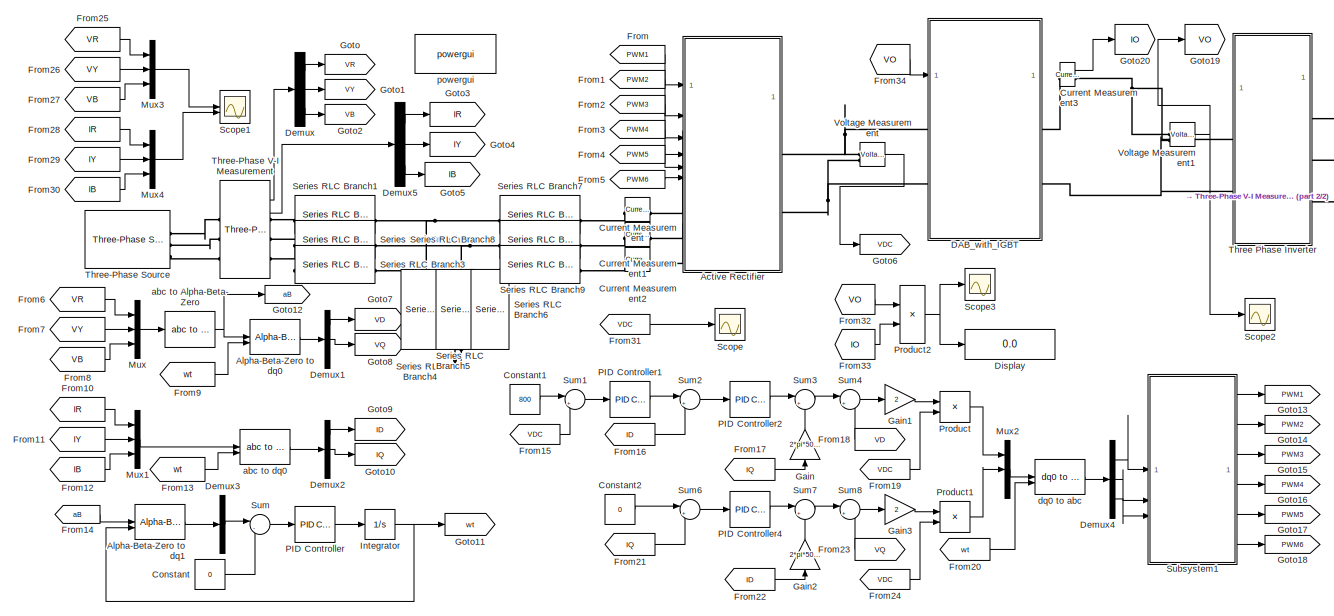
[diagram: root canvas - part 1/2, most of the canvas]
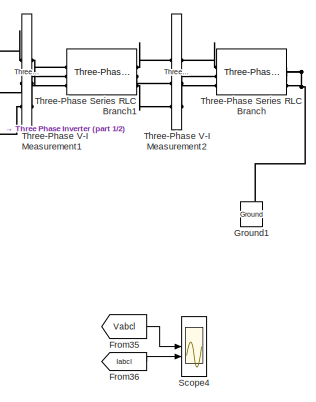
[diagram: root canvas - part 2/2, middle right region]
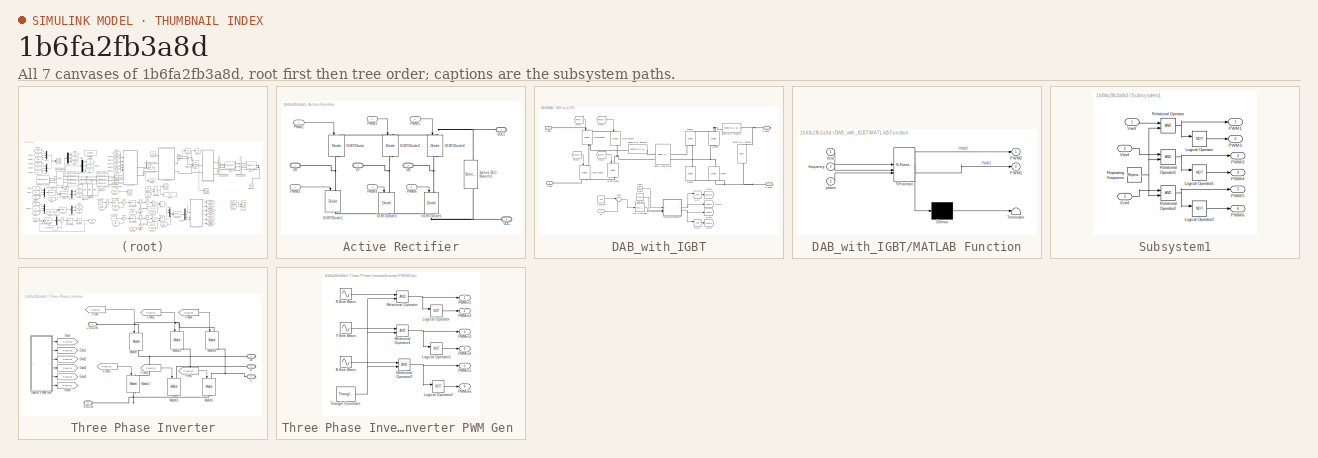
[diagram: thumbnail index - all 7 canvases of the model, root first then tree order]
MODEL slx_1b6fa2fb3a8d
KIND model
CONFIG AbsTol = auto
CONFIG EnableMultiTasking = off
CONFIG FixedStep = auto
CONFIG MaxStep = auto
CONFIG MinStep = auto
CONFIG RelTol = 1e-3
CONFIG SampleTimeConstraint = Unconstrained
CONFIG SolverName = VariableStepAuto
CONFIG StartTime = 0.0
CONFIG StopTime = 1.0
BLOCK [SubSystem] Active Rectifier
BLOCK [Reference] Active Rectifier/IGBT//Diode  REF=spsIGBTDiodeLib/IGBT//Diode
  LibrarySourceBlock = sps_lib/Power Electronics/IGBT//Diode
  NameLocation = left
  SourceBlock = spsIGBTDiodeLib/IGBT//Diode
  SourceType = IGBT/Diode
BLOCK [Reference] Active Rectifier/IGBT//Diode1  REF=spsIGBTDiodeLib/IGBT//Diode
  LibrarySourceBlock = sps_lib/Power Electronics/IGBT//Diode
  NameLocation = left
  SourceBlock = spsIGBTDiodeLib/IGBT//Diode
  SourceType = IGBT/Diode
BLOCK [Reference] Active Rectifier/IGBT//Diode2  REF=spsIGBTDiodeLib/IGBT//Diode
  LibrarySourceBlock = sps_lib/Power Electronics/IGBT//Diode
  NameLocation = left
  SourceBlock = spsIGBTDiodeLib/IGBT//Diode
  SourceType = IGBT/Diode
BLOCK [Reference] Active Rectifier/IGBT//Diode3  REF=spsIGBTDiodeLib/IGBT//Diode
  LibrarySourceBlock = sps_lib/Power Electronics/IGBT//Diode
  NameLocation = left
  SourceBlock = spsIGBTDiodeLib/IGBT//Diode
  SourceType = IGBT/Diode
BLOCK [Reference] Active Rectifier/IGBT//Diode4  REF=spsIGBTDiodeLib/IGBT//Diode
  LibrarySourceBlock = sps_lib/Power Electronics/IGBT//Diode
  NameLocation = left
  SourceBlock = spsIGBTDiodeLib/IGBT//Diode
  SourceType = IGBT/Diode
BLOCK [Reference] Active Rectifier/IGBT//Diode5  REF=spsIGBTDiodeLib/IGBT//Diode
  LibrarySourceBlock = sps_lib/Power Electronics/IGBT//Diode
  NameLocation = left
  SourceBlock = spsIGBTDiodeLib/IGBT//Diode
  SourceType = IGBT/Diode
BLOCK [Inport] Active Rectifier/PWM1
BLOCK [Inport] Active Rectifier/PWM2
  Port = 2
BLOCK [Inport] Active Rectifier/PWM3
  Port = 3
BLOCK [Inport] Active Rectifier/PWM4
  Port = 4
BLOCK [Inport] Active Rectifier/PWM5
  Port = 5
BLOCK [Inport] Active Rectifier/PWM6
  Port = 6
BLOCK [Reference] Active Rectifier/Series RLC Branch1  REF=spsSeriesRLCBranchLib/Series RLC Branch
  LibrarySourceBlock = sps_lib/Passives/Series RLC Branch
  NameLocation = left
  SourceBlock = spsSeriesRLCBranchLib/Series RLC Branch
  SourceType = Series RLC Branch
BLOCK [PMIOPort] Active Rectifier/VB
  Port = 3
  Side = Left
BLOCK [PMIOPort] Active Rectifier/VDC+
  Port = 4
  Side = Right
BLOCK [PMIOPort] Active Rectifier/VDC-
  Port = 5
  Side = Right
BLOCK [PMIOPort] Active Rectifier/VR
  Side = Left
BLOCK [PMIOPort] Active Rectifier/VY
  Port = 2
  Side = Left
BLOCK [Reference] Alpha-Beta-Zero to dq0  REF=spsAlphaBetaZerotodq0Lib/Alpha-Beta-Zero
to dq0
  LibrarySourceBlock = sps_lib/Control/Alpha-Beta-Zero\nto dq0
  SourceBlock = spsAlphaBetaZerotodq0Lib/Alpha-Beta-Zero\nto dq0
  SourceType = Alpha-Beta-Zero to dq0 Transformation
BLOCK [Reference] Alpha-Beta-Zero to dq1  REF=spsAlphaBetaZerotodq0Lib/Alpha-Beta-Zero
to dq0
  LibrarySourceBlock = sps_lib/Control/Alpha-Beta-Zero\nto dq0
  SourceBlock = spsAlphaBetaZerotodq0Lib/Alpha-Beta-Zero\nto dq0
  SourceType = Alpha-Beta-Zero to dq0 Transformation
BLOCK [Constant] Constant
  Value = 0
BLOCK [Constant] Constant1
  Value = 800
BLOCK [Constant] Constant2
  Value = 0
BLOCK [Reference] Current Measurement  REF=spsCurrentMeasurementLib/Current Measurement
  LibrarySourceBlock = sps_lib/Sensors and Measurements/Current Measurement
  SourceBlock = spsCurrentMeasurementLib/Current Measurement
  SourceType = Current Measurement
  UserDataPersistent = on
BLOCK [Reference] Current Measurement1  REF=spsCurrentMeasurementLib/Current Measurement
  LibrarySourceBlock = sps_lib/Sensors and Measurements/Current Measurement
  SourceBlock = spsCurrentMeasurementLib/Current Measurement
  SourceType = Current Measurement
  UserDataPersistent = on
BLOCK [Reference] Current Measurement2  REF=spsCurrentMeasurementLib/Current Measurement
  LibrarySourceBlock = sps_lib/Sensors and Measurements/Current Measurement
  SourceBlock = spsCurrentMeasurementLib/Current Measurement
  SourceType = Current Measurement
  UserDataPersistent = on
BLOCK [Reference] Current Measurement3  REF=spsCurrentMeasurementLib/Current Measurement
  LibrarySourceBlock = sps_lib/Sensors and Measurements/Current Measurement
  SourceBlock = spsCurrentMeasurementLib/Current Measurement
  SourceType = Current Measurement
  UserDataPersistent = on
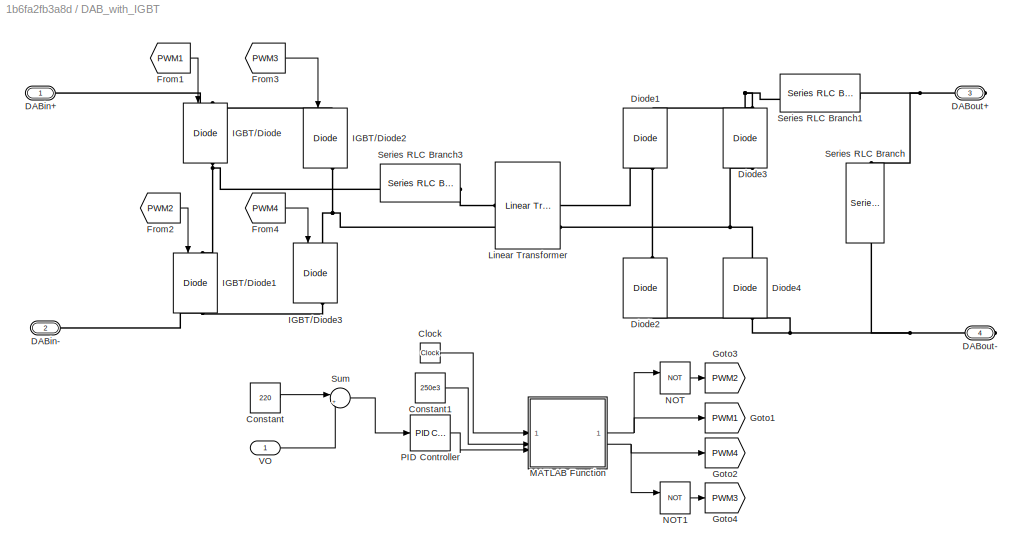
BLOCK [SubSystem] DAB_with_IGBT
BLOCK [Clock] DAB_with_IGBT/Clock
BLOCK [Constant] DAB_with_IGBT/Constant
  Value = 220
BLOCK [Constant] DAB_with_IGBT/Constant1
  Value = 250e3
BLOCK [PMIOPort] DAB_with_IGBT/DABin+
  Side = Left
BLOCK [PMIOPort] DAB_with_IGBT/DABin-
  Port = 2
  Side = Left
BLOCK [PMIOPort] DAB_with_IGBT/DABout+
  Port = 3
  Side = Right
BLOCK [PMIOPort] DAB_with_IGBT/DABout-
  Port = 4
  Side = Right
BLOCK [Reference] DAB_with_IGBT/Diode1  REF=spsDiodeLib/Diode
  LibrarySourceBlock = sps_lib/Power Electronics/Diode
  NameLocation = right
  SourceBlock = spsDiodeLib/Diode
  SourceType = Diode
BLOCK [Reference] DAB_with_IGBT/Diode2  REF=spsDiodeLib/Diode
  LibrarySourceBlock = sps_lib/Power Electronics/Diode
  NameLocation = right
  SourceBlock = spsDiodeLib/Diode
  SourceType = Diode
BLOCK [Reference] DAB_with_IGBT/Diode3  REF=spsDiodeLib/Diode
  LibrarySourceBlock = sps_lib/Power Electronics/Diode
  NameLocation = right
  SourceBlock = spsDiodeLib/Diode
  SourceType = Diode
BLOCK [Reference] DAB_with_IGBT/Diode4  REF=spsDiodeLib/Diode
  LibrarySourceBlock = sps_lib/Power Electronics/Diode
  NameLocation = right
  SourceBlock = spsDiodeLib/Diode
  SourceType = Diode
BLOCK [From] DAB_with_IGBT/From1
  GotoTag = PWM1
BLOCK [From] DAB_with_IGBT/From2
  GotoTag = PWM2
BLOCK [From] DAB_with_IGBT/From3
  GotoTag = PWM3
BLOCK [From] DAB_with_IGBT/From4
  GotoTag = PWM4
BLOCK [Goto] DAB_with_IGBT/Goto1
  GotoTag = PWM1
BLOCK [Goto] DAB_with_IGBT/Goto2
  GotoTag = PWM4
BLOCK [Goto] DAB_with_IGBT/Goto3
  GotoTag = PWM2
BLOCK [Goto] DAB_with_IGBT/Goto4
  GotoTag = PWM3
BLOCK [Reference] DAB_with_IGBT/IGBT//Diode  REF=spsIGBTDiodeLib/IGBT//Diode
  LibrarySourceBlock = sps_lib/Power Electronics/IGBT//Diode
  NameLocation = left
  SourceBlock = spsIGBTDiodeLib/IGBT//Diode
  SourceType = IGBT/Diode
BLOCK [Reference] DAB_with_IGBT/IGBT//Diode1  REF=spsIGBTDiodeLib/IGBT//Diode
  LibrarySourceBlock = sps_lib/Power Electronics/IGBT//Diode
  NameLocation = left
  SourceBlock = spsIGBTDiodeLib/IGBT//Diode
  SourceType = IGBT/Diode
BLOCK [Reference] DAB_with_IGBT/IGBT//Diode2  REF=spsIGBTDiodeLib/IGBT//Diode
  LibrarySourceBlock = sps_lib/Power Electronics/IGBT//Diode
  NameLocation = left
  SourceBlock = spsIGBTDiodeLib/IGBT//Diode
  SourceType = IGBT/Diode
BLOCK [Reference] DAB_with_IGBT/IGBT//Diode3  REF=spsIGBTDiodeLib/IGBT//Diode
  LibrarySourceBlock = sps_lib/Power Electronics/IGBT//Diode
  NameLocation = left
  SourceBlock = spsIGBTDiodeLib/IGBT//Diode
  SourceType = IGBT/Diode
BLOCK [Reference] DAB_with_IGBT/Linear Transformer  REF=spsLinearTransformerLib/Linear Transformer
  LibrarySourceBlock = sps_lib/Power Grid Elements/Linear Transformer
  SourceBlock = spsLinearTransformerLib/Linear Transformer
  SourceType = Linear Transformer
BLOCK [SubSystem] DAB_with_IGBT/MATLAB Function
  ErrorFcn = Stateflow.Translate.translate
  LibrarySourceBlock = simulink/User-Defined\nFunctions/MATLAB Function
  PermitHierarchicalResolution = ExplicitOnly
  SFBlockType = MATLAB Function
  TreatAsAtomicUnit = on
BLOCK [Demux] DAB_with_IGBT/MATLAB Function/ Demux 
  Outputs = 1
BLOCK [S-Function] DAB_with_IGBT/MATLAB Function/ SFunction 
  EnableBusSupport = on
  FunctionName = sf_sfun
  PortCounts = [3 3]
  SFcnIsStateOwnerBlock = off
  SFunctionDeploymentMode = off
  Tag = Stateflow S-Function 2
BLOCK [Terminator] DAB_with_IGBT/MATLAB Function/ Terminator 
BLOCK [Outport] DAB_with_IGBT/MATLAB Function/PWM1
  Port = 2
BLOCK [Outport] DAB_with_IGBT/MATLAB Function/PWM2
BLOCK [Inport] DAB_with_IGBT/MATLAB Function/frequency
  Port = 2
BLOCK [Inport] DAB_with_IGBT/MATLAB Function/phase
  Port = 3
BLOCK [Inport] DAB_with_IGBT/MATLAB Function/time
BLOCK [Logic] DAB_with_IGBT/NOT
  AllPortsSameDT = off
  IconShape = distinctive
  Operator = NOT
  OutDataTypeStr = boolean
BLOCK [Logic] DAB_with_IGBT/NOT1
  AllPortsSameDT = off
  IconShape = distinctive
  Operator = NOT
  OutDataTypeStr = boolean
BLOCK [Reference] DAB_with_IGBT/PID Controller  REF=slpidlib/PID Controller
  LibrarySourceBlock = simulink/Continuous/PID Controller
  SourceBlock = slpidlib/PID Controller
  SourceType = PID 1dof
BLOCK [Reference] DAB_with_IGBT/Series RLC Branch  REF=spsSeriesRLCBranchLib/Series RLC Branch
  LibrarySourceBlock = sps_lib/Passives/Series RLC Branch
  NameLocation = left
  SourceBlock = spsSeriesRLCBranchLib/Series RLC Branch
  SourceType = Series RLC Branch
BLOCK [Reference] DAB_with_IGBT/Series RLC Branch1  REF=spsSeriesRLCBranchLib/Series RLC Branch
  LibrarySourceBlock = sps_lib/Passives/Series RLC Branch
  SourceBlock = spsSeriesRLCBranchLib/Series RLC Branch
  SourceType = Series RLC Branch
BLOCK [Reference] DAB_with_IGBT/Series RLC Branch3  REF=spsSeriesRLCBranchLib/Series RLC Branch
  LibrarySourceBlock = sps_lib/Passives/Series RLC Branch
  SourceBlock = spsSeriesRLCBranchLib/Series RLC Branch
  SourceType = Series RLC Branch
BLOCK [Sum] DAB_with_IGBT/Sum
  Inputs = |+-
BLOCK [Inport] DAB_with_IGBT/VO
BLOCK [Demux] Demux
  Outputs = 3
BLOCK [Demux] Demux1
  Outputs = 3
BLOCK [Demux] Demux2
  Outputs = 3
BLOCK [Demux] Demux3
  Outputs = 3
BLOCK [Demux] Demux4
  Outputs = 3
BLOCK [Demux] Demux5
  Outputs = 3
BLOCK [Display] Display
  Decimation = 1
BLOCK [From] From
  GotoTag = PWM1
BLOCK [From] From1
  GotoTag = PWM2
BLOCK [From] From10
  GotoTag = IR
BLOCK [From] From11
  GotoTag = IY
BLOCK [From] From12
  GotoTag = IB
BLOCK [From] From13
  GotoTag = wt
BLOCK [From] From14
  GotoTag = aB
BLOCK [From] From15
  GotoTag = VDC
BLOCK [From] From16
  GotoTag = ID
BLOCK [From] From17
  GotoTag = IQ
BLOCK [From] From18
  GotoTag = VD
BLOCK [From] From19
  GotoTag = VDC
BLOCK [From] From2
  GotoTag = PWM3
BLOCK [From] From20
  GotoTag = wt
BLOCK [From] From21
  GotoTag = IQ
BLOCK [From] From22
  GotoTag = ID
BLOCK [From] From23
  GotoTag = VQ
BLOCK [From] From24
  GotoTag = VDC
BLOCK [From] From25
  GotoTag = VR
BLOCK [From] From26
  GotoTag = VY
BLOCK [From] From27
  GotoTag = VB
BLOCK [From] From28
  GotoTag = IR
BLOCK [From] From29
  GotoTag = IY
BLOCK [From] From3
  GotoTag = PWM4
BLOCK [From] From30
  GotoTag = IB
BLOCK [From] From31
  GotoTag = VDC
BLOCK [From] From32
  GotoTag = VO
BLOCK [From] From33
  GotoTag = IO
BLOCK [From] From34
  GotoTag = VO
BLOCK [From] From35
  GotoTag = Vabcl
  TagVisibility = global
BLOCK [From] From36
  GotoTag = Iabcl
  TagVisibility = global
BLOCK [From] From4
  GotoTag = PWM5
BLOCK [From] From5
  GotoTag = PWM6
BLOCK [From] From6
  GotoTag = VR
BLOCK [From] From7
  GotoTag = VY
BLOCK [From] From8
  GotoTag = VB
BLOCK [From] From9
  GotoTag = wt
BLOCK [Gain] Gain
  Gain = 2*pi*50*1000e-6
  NameLocation = right
BLOCK [Gain] Gain1
  Gain = 2
BLOCK [Gain] Gain2
  Gain = 2*pi*50*1000e-6
  NameLocation = right
BLOCK [Gain] Gain3
  Gain = 2
BLOCK [Goto] Goto
  GotoTag = VR
BLOCK [Goto] Goto1
  GotoTag = VY
BLOCK [Goto] Goto10
  GotoTag = IQ
BLOCK [Goto] Goto11
  GotoTag = wt
BLOCK [Goto] Goto12
  GotoTag = aB
BLOCK [Goto] Goto13
  GotoTag = PWM1
BLOCK [Goto] Goto14
  GotoTag = PWM2
BLOCK [Goto] Goto15
  GotoTag = PWM3
BLOCK [Goto] Goto16
  GotoTag = PWM4
BLOCK [Goto] Goto17
  GotoTag = PWM5
BLOCK [Goto] Goto18
  GotoTag = PWM6
BLOCK [Goto] Goto19
  GotoTag = VO
BLOCK [Goto] Goto2
  GotoTag = VB
BLOCK [Goto] Goto20
  GotoTag = IO
BLOCK [Goto] Goto3
  GotoTag = IR
BLOCK [Goto] Goto4
  GotoTag = IY
BLOCK [Goto] Goto5
  GotoTag = IB
BLOCK [Goto] Goto6
  GotoTag = VDC
BLOCK [Goto] Goto7
  GotoTag = VD
BLOCK [Goto] Goto8
  GotoTag = VQ
BLOCK [Goto] Goto9
  GotoTag = ID
BLOCK [Reference] Ground1  REF=spsGroundLib/Ground
  LibrarySourceBlock = sps_lib/Utilities/Ground
  NameLocation = right
  SourceBlock = spsGroundLib/Ground
  SourceType = Ground
BLOCK [Integrator] Integrator
BLOCK [Mux] Mux
  DisplayOption = bar
  Inputs = 3
BLOCK [Mux] Mux1
  DisplayOption = bar
  Inputs = 3
BLOCK [Mux] Mux2
  DisplayOption = bar
  Inputs = 3
BLOCK [Mux] Mux3
  DisplayOption = bar
  Inputs = 3
BLOCK [Mux] Mux4
  DisplayOption = bar
  Inputs = 3
BLOCK [Reference] PID Controller  REF=slpidlib/PID Controller
  LibrarySourceBlock = simulink/Continuous/PID Controller
  SourceBlock = slpidlib/PID Controller
  SourceType = PID 1dof
BLOCK [Reference] PID Controller1  REF=slpidlib/PID Controller
  LibrarySourceBlock = simulink/Continuous/PID Controller
  SourceBlock = slpidlib/PID Controller
  SourceType = PID 1dof
BLOCK [Reference] PID Controller2  REF=slpidlib/PID Controller
  LibrarySourceBlock = simulink/Continuous/PID Controller
  SourceBlock = slpidlib/PID Controller
  SourceType = PID 1dof
BLOCK [Reference] PID Controller4  REF=slpidlib/PID Controller
  LibrarySourceBlock = simulink/Continuous/PID Controller
  SourceBlock = slpidlib/PID Controller
  SourceType = PID 1dof
BLOCK [Product] Product
  Inputs = */
BLOCK [Product] Product1
  Inputs = */
BLOCK [Product] Product2
BLOCK [Scope] Scope
  Floating = off
  NumInputPorts = 1
  ScopeSpecificationString = Simulink.scopes.TimeScopeBlockCfg('CurrentConfiguration', extmgr.ConfigurationSet(extmgr.Configuration('Core','General UI',true,'FigureColor',[1 1 1]),extmgr.Configuration('Core','Source UI',true),extmgr.Configuration('Sources','WiredSimulink',true,'DataLoggingVariableName','ScopeData1'),extmgr.Configuration('Visuals','Time Domain',true,'SerializedDisplays',{struct('MinYLimReal','-140.99933','MaxY...<+1516ch>
BLOCK [Scope] Scope1
  Floating = off
  NumInputPorts = 2
  ScopeSpecificationString = Simulink.scopes.TimeScopeBlockCfg('CurrentConfiguration', extmgr.ConfigurationSet(extmgr.Configuration('Core','General UI',true,'FigureColor',[1 1 1]),extmgr.Configuration('Core','Source UI',true),extmgr.Configuration('Sources','WiredSimulink',true),extmgr.Configuration('Visuals','Time Domain',true,'SerializedDisplays',{struct('MinYLimReal','-1213.92649','MaxYLimReal','1216.85439','YLabelReal','',...<+2098ch>
BLOCK [Scope] Scope2
  Floating = off
  NumInputPorts = 1
  ScopeSpecificationString = Simulink.scopes.TimeScopeBlockCfg('CurrentConfiguration', extmgr.ConfigurationSet(extmgr.Configuration('Core','General UI',true,'FigureColor',[1 1 1]),extmgr.Configuration('Core','Source UI',true),extmgr.Configuration('Sources','WiredSimulink',true,'DataLoggingVariableName','ScopeData2'),extmgr.Configuration('Visuals','Time Domain',true,'SerializedDisplays',{struct('MinYLimReal','-73.99323','MaxYL...<+1534ch>
BLOCK [Scope] Scope3
  Floating = off
  NumInputPorts = 1
  ScopeSpecificationString = Simulink.scopes.TimeScopeBlockCfg('CurrentConfiguration', extmgr.ConfigurationSet(extmgr.Configuration('Core','General UI',true),extmgr.Configuration('Core','Source UI',true),extmgr.Configuration('Sources','WiredSimulink',true,'DataLoggingVariableName','ScopeData3'),extmgr.Configuration('Visuals','Time Domain',true,'SerializedDisplays',{struct('MinYLimReal','-388.59386','MaxYLimReal','3497.34476',...<+1410ch>
BLOCK [Scope] Scope4
  Floating = off
  NumInputPorts = 2
  ScopeSpecificationString = Simulink.scopes.TimeScopeBlockCfg('CurrentConfiguration', extmgr.ConfigurationSet(extmgr.Configuration('Core','General UI',true,'FigureColor',[1 1 1]),extmgr.Configuration('Core','Source UI',true),extmgr.Configuration('Sources','WiredSimulink',true,'DataLoggingVariableName','ScopeData4'),extmgr.Configuration('Visuals','Time Domain',true,'TimeAxisLabels','All','SerializedDisplays',{struct('MinYLimR...<+2690ch>
BLOCK [Reference] Series RLC Branch1  REF=spsSeriesRLCBranchLib/Series RLC Branch
  LibrarySourceBlock = sps_lib/Passives/Series RLC Branch
  SourceBlock = spsSeriesRLCBranchLib/Series RLC Branch
  SourceType = Series RLC Branch
BLOCK [Reference] Series RLC Branch2  REF=spsSeriesRLCBranchLib/Series RLC Branch
  LibrarySourceBlock = sps_lib/Passives/Series RLC Branch
  SourceBlock = spsSeriesRLCBranchLib/Series RLC Branch
  SourceType = Series RLC Branch
BLOCK [Reference] Series RLC Branch3  REF=spsSeriesRLCBranchLib/Series RLC Branch
  LibrarySourceBlock = sps_lib/Passives/Series RLC Branch
  SourceBlock = spsSeriesRLCBranchLib/Series RLC Branch
  SourceType = Series RLC Branch
BLOCK [Reference] Series RLC Branch4  REF=spsSeriesRLCBranchLib/Series RLC Branch
  LibrarySourceBlock = sps_lib/Passives/Series RLC Branch
  NameLocation = left
  SourceBlock = spsSeriesRLCBranchLib/Series RLC Branch
  SourceType = Series RLC Branch
BLOCK [Reference] Series RLC Branch5  REF=spsSeriesRLCBranchLib/Series RLC Branch
  LibrarySourceBlock = sps_lib/Passives/Series RLC Branch
  NameLocation = left
  SourceBlock = spsSeriesRLCBranchLib/Series RLC Branch
  SourceType = Series RLC Branch
BLOCK [Reference] Series RLC Branch6  REF=spsSeriesRLCBranchLib/Series RLC Branch
  LibrarySourceBlock = sps_lib/Passives/Series RLC Branch
  NameLocation = left
  SourceBlock = spsSeriesRLCBranchLib/Series RLC Branch
  SourceType = Series RLC Branch
BLOCK [Reference] Series RLC Branch7  REF=spsSeriesRLCBranchLib/Series RLC Branch
  LibrarySourceBlock = sps_lib/Passives/Series RLC Branch
  SourceBlock = spsSeriesRLCBranchLib/Series RLC Branch
  SourceType = Series RLC Branch
BLOCK [Reference] Series RLC Branch8  REF=spsSeriesRLCBranchLib/Series RLC Branch
  LibrarySourceBlock = sps_lib/Passives/Series RLC Branch
  SourceBlock = spsSeriesRLCBranchLib/Series RLC Branch
  SourceType = Series RLC Branch
BLOCK [Reference] Series RLC Branch9  REF=spsSeriesRLCBranchLib/Series RLC Branch
  LibrarySourceBlock = sps_lib/Passives/Series RLC Branch
  SourceBlock = spsSeriesRLCBranchLib/Series RLC Branch
  SourceType = Series RLC Branch
BLOCK [SubSystem] Subsystem1
BLOCK [Logic] Subsystem1/Logical Operator
  AllPortsSameDT = off
  Operator = NOT
  OutDataTypeStr = boolean
BLOCK [Logic] Subsystem1/Logical Operator1
  AllPortsSameDT = off
  Operator = NOT
  OutDataTypeStr = boolean
BLOCK [Logic] Subsystem1/Logical Operator2
  AllPortsSameDT = off
  Operator = NOT
  OutDataTypeStr = boolean
BLOCK [Outport] Subsystem1/PWM1
BLOCK [Outport] Subsystem1/PWM2
  Port = 2
BLOCK [Outport] Subsystem1/PWM3
  Port = 3
BLOCK [Outport] Subsystem1/PWM4
  Port = 4
BLOCK [Outport] Subsystem1/PWM5
  Port = 5
BLOCK [Outport] Subsystem1/PWM6
  Port = 6
BLOCK [RelationalOperator] Subsystem1/Relational Operator
  InputSameDT = off
  OutDataTypeStr = boolean
  RndMeth = Simplest
BLOCK [RelationalOperator] Subsystem1/Relational Operator1
  InputSameDT = off
  OutDataTypeStr = boolean
  RndMeth = Simplest
BLOCK [RelationalOperator] Subsystem1/Relational Operator2
  InputSameDT = off
  OutDataTypeStr = boolean
  RndMeth = Simplest
BLOCK [Reference] Subsystem1/Repeating Sequence  REF=simulink/Sources/Repeating
Sequence
  SourceBlock = simulink/Sources/Repeating\nSequence
  SourceType = Repeating table
BLOCK [Inport] Subsystem1/Varef
BLOCK [Inport] Subsystem1/Vbref
  Port = 2
BLOCK [Inport] Subsystem1/Vcref
  Port = 3
BLOCK [Sum] Sum
  Inputs = |-+
BLOCK [Sum] Sum1
  Inputs = |+-
BLOCK [Sum] Sum2
  Inputs = |+-
BLOCK [Sum] Sum3
  Inputs = |++
BLOCK [Sum] Sum4
  Inputs = |++
BLOCK [Sum] Sum6
  Inputs = |+-
BLOCK [Sum] Sum7
  Inputs = |+-
BLOCK [Sum] Sum8
  Inputs = |++
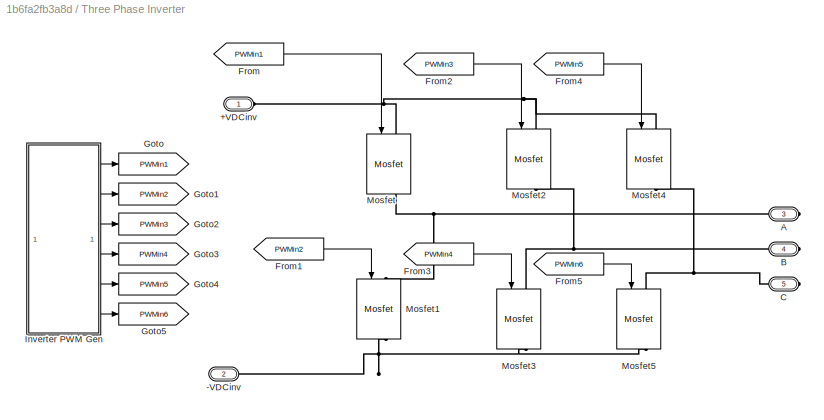
BLOCK [SubSystem] Three Phase Inverter
BLOCK [PMIOPort] Three Phase Inverter/+VDCinv
  Side = Left
BLOCK [PMIOPort] Three Phase Inverter/-VDCinv
  Port = 2
  Side = Left
BLOCK [PMIOPort] Three Phase Inverter/A
  Port = 3
  Side = Right
BLOCK [PMIOPort] Three Phase Inverter/B
  Port = 4
  Side = Right
BLOCK [PMIOPort] Three Phase Inverter/C
  Port = 5
  Side = Right
BLOCK [From] Three Phase Inverter/From
  GotoTag = PWMin1
BLOCK [From] Three Phase Inverter/From1
  GotoTag = PWMin2
BLOCK [From] Three Phase Inverter/From2
  GotoTag = PWMin3
BLOCK [From] Three Phase Inverter/From3
  GotoTag = PWMin4
BLOCK [From] Three Phase Inverter/From4
  GotoTag = PWMin5
BLOCK [From] Three Phase Inverter/From5
  GotoTag = PWMin6
BLOCK [Goto] Three Phase Inverter/Goto
  GotoTag = PWMin1
BLOCK [Goto] Three Phase Inverter/Goto1
  GotoTag = PWMin2
BLOCK [Goto] Three Phase Inverter/Goto2
  GotoTag = PWMin3
BLOCK [Goto] Three Phase Inverter/Goto3
  GotoTag = PWMin4
BLOCK [Goto] Three Phase Inverter/Goto4
  GotoTag = PWMin5
BLOCK [Goto] Three Phase Inverter/Goto5
  GotoTag = PWMin6
BLOCK [SubSystem] Three Phase Inverter/Inverter PWM Gen 
BLOCK [Sin] Three Phase Inverter/Inverter PWM Gen /B Sine Wave
  Amplitude = 0.8
  Frequency = 2*pi*50
  Phase = -2*pi*50/3
  SampleTime = 0
BLOCK [Logic] Three Phase Inverter/Inverter PWM Gen /Logical Operator
  AllPortsSameDT = off
  Operator = NOT
  OutDataTypeStr = boolean
BLOCK [Logic] Three Phase Inverter/Inverter PWM Gen /Logical Operator1
  AllPortsSameDT = off
  Operator = NOT
  OutDataTypeStr = boolean
BLOCK [Logic] Three Phase Inverter/Inverter PWM Gen /Logical Operator2
  AllPortsSameDT = off
  Operator = NOT
  OutDataTypeStr = boolean
BLOCK [Outport] Three Phase Inverter/Inverter PWM Gen /PWMin1
BLOCK [Outport] Three Phase Inverter/Inverter PWM Gen /PWMin2
  Port = 2
BLOCK [Outport] Three Phase Inverter/Inverter PWM Gen /PWMin3
  Port = 3
BLOCK [Outport] Three Phase Inverter/Inverter PWM Gen /PWMin4
  Port = 4
BLOCK [Outport] Three Phase Inverter/Inverter PWM Gen /PWMin5
  Port = 5
BLOCK [Outport] Three Phase Inverter/Inverter PWM Gen /PWMin6
  Port = 6
BLOCK [Sin] Three Phase Inverter/Inverter PWM Gen /R Sine Wave
  Amplitude = 0.8
  Frequency = 2*pi*50
  SampleTime = 0
BLOCK [RelationalOperator] Three Phase Inverter/Inverter PWM Gen /Relational Operator
  InputSameDT = off
  OutDataTypeStr = boolean
  RndMeth = Simplest
BLOCK [RelationalOperator] Three Phase Inverter/Inverter PWM Gen /Relational Operator1
  InputSameDT = off
  OutDataTypeStr = boolean
  RndMeth = Simplest
BLOCK [RelationalOperator] Three Phase Inverter/Inverter PWM Gen /Relational Operator2
  InputSameDT = off
  OutDataTypeStr = boolean
  RndMeth = Simplest
BLOCK [Reference] Three Phase Inverter/Inverter PWM Gen /Triangle Generator  REF=spsTriangleGeneratorLib/Triangle
Generator
  LibrarySourceBlock = sps_lib/Sources/Signal Generator Sources/Triangle\nGenerator
  SourceBlock = spsTriangleGeneratorLib/Triangle\nGenerator
  SourceType = Triangle Generator
BLOCK [Sin] Three Phase Inverter/Inverter PWM Gen /Y Sine Wave
  Amplitude = 0.8
  Frequency = 2*pi*50
  Phase = 2*pi*50/3
  SampleTime = 0
BLOCK [Reference] Three Phase Inverter/Mosfet  REF=spsMosfetLib/Mosfet
  LibrarySourceBlock = sps_lib/Power Electronics/Mosfet
  NameLocation = left
  SourceBlock = spsMosfetLib/Mosfet
  SourceType = Mosfet
BLOCK [Reference] Three Phase Inverter/Mosfet1  REF=spsMosfetLib/Mosfet
  LibrarySourceBlock = sps_lib/Power Electronics/Mosfet
  NameLocation = left
  SourceBlock = spsMosfetLib/Mosfet
  SourceType = Mosfet
BLOCK [Reference] Three Phase Inverter/Mosfet2  REF=spsMosfetLib/Mosfet
  LibrarySourceBlock = sps_lib/Power Electronics/Mosfet
  NameLocation = left
  SourceBlock = spsMosfetLib/Mosfet
  SourceType = Mosfet
BLOCK [Reference] Three Phase Inverter/Mosfet3  REF=spsMosfetLib/Mosfet
  LibrarySourceBlock = sps_lib/Power Electronics/Mosfet
  NameLocation = left
  SourceBlock = spsMosfetLib/Mosfet
  SourceType = Mosfet
BLOCK [Reference] Three Phase Inverter/Mosfet4  REF=spsMosfetLib/Mosfet
  LibrarySourceBlock = sps_lib/Power Electronics/Mosfet
  NameLocation = left
  SourceBlock = spsMosfetLib/Mosfet
  SourceType = Mosfet
BLOCK [Reference] Three Phase Inverter/Mosfet5  REF=spsMosfetLib/Mosfet
  LibrarySourceBlock = sps_lib/Power Electronics/Mosfet
  NameLocation = left
  SourceBlock = spsMosfetLib/Mosfet
  SourceType = Mosfet
BLOCK [Reference] Three-Phase Series RLC Branch  REF=spsThreePhaseSeriesRLCBranchLib/Three-Phase
Series RLC Branch
  AttributesFormatString = \n
  LibrarySourceBlock = sps_lib/Passives/Three-Phase\nSeries RLC Branch
  SourceBlock = spsThreePhaseSeriesRLCBranchLib/Three-Phase\nSeries RLC Branch
  SourceType = Three-Phase Series RLC Branch
BLOCK [Reference] Three-Phase Series RLC Branch1  REF=spsThreePhaseSeriesRLCBranchLib/Three-Phase
Series RLC Branch
  AttributesFormatString = \n
  LibrarySourceBlock = sps_lib/Passives/Three-Phase\nSeries RLC Branch
  SourceBlock = spsThreePhaseSeriesRLCBranchLib/Three-Phase\nSeries RLC Branch
  SourceType = Three-Phase Series RLC Branch
BLOCK [Reference] Three-Phase Source  REF=spsThreePhaseSourceLib/Three-Phase Source
  LibrarySourceBlock = sps_lib/Sources/Three-Phase Source
  SourceBlock = spsThreePhaseSourceLib/Three-Phase Source
  SourceType = Three-Phase Source
BLOCK [Reference] Three-Phase V-I Measurement  REF=spsThreePhaseVIMeasurementLib/Three-Phase
V-I Measurement
  LibrarySourceBlock = sps_lib/Sensors and Measurements/Three-Phase\nV-I Measurement
  SourceBlock = spsThreePhaseVIMeasurementLib/Three-Phase\nV-I Measurement
  SourceType = Three-Phase VI Measurement
BLOCK [Reference] Three-Phase V-I Measurement1  REF=spsThreePhaseVIMeasurementLib/Three-Phase
V-I Measurement
  LibrarySourceBlock = sps_lib/Sensors and Measurements/Three-Phase\nV-I Measurement
  SourceBlock = spsThreePhaseVIMeasurementLib/Three-Phase\nV-I Measurement
  SourceType = Three-Phase VI Measurement
BLOCK [Reference] Three-Phase V-I Measurement2  REF=spsThreePhaseVIMeasurementLib/Three-Phase
V-I Measurement
  LibrarySourceBlock = sps_lib/Sensors and Measurements/Three-Phase\nV-I Measurement
  SourceBlock = spsThreePhaseVIMeasurementLib/Three-Phase\nV-I Measurement
  SourceType = Three-Phase VI Measurement
BLOCK [Reference] Voltage Measurement  REF=spsVoltageMeasurementLib/Voltage Measurement
  LibrarySourceBlock = sps_lib/Sensors and Measurements/Voltage Measurement
  SourceBlock = spsVoltageMeasurementLib/Voltage Measurement
  SourceType = Voltage Measurement
  UserDataPersistent = on
BLOCK [Reference] Voltage Measurement1  REF=spsVoltageMeasurementLib/Voltage Measurement
  LibrarySourceBlock = sps_lib/Sensors and Measurements/Voltage Measurement
  SourceBlock = spsVoltageMeasurementLib/Voltage Measurement
  SourceType = Voltage Measurement
  UserDataPersistent = on
BLOCK [Reference] abc to Alpha-Beta-Zero  REF=spsabctoAlphaBetaZeroLib/abc to
Alpha-Beta-Zero
  LibrarySourceBlock = sps_lib/Control/abc to\nAlpha-Beta-Zero
  SourceBlock = spsabctoAlphaBetaZeroLib/abc to\nAlpha-Beta-Zero
  SourceType = abc to Alpha-Beta-Zero Transformation
BLOCK [Reference] abc to dq0  REF=spsabctodq0Lib/abc to dq0
  LibrarySourceBlock = sps_lib/Control/abc to dq0
  SourceBlock = spsabctodq0Lib/abc to dq0
  SourceType = abc to dq0 Transformation
BLOCK [Reference] dq0 to abc  REF=spsdq0toabcLib/dq0 to abc
  LibrarySourceBlock = sps_lib/Control/dq0 to abc
  SourceBlock = spsdq0toabcLib/dq0 to abc
  SourceType = dq0 to abc Transformation
BLOCK [Reference] powergui  REF=sps_lib/powergui
  Priority = 1
  SourceBlock = sps_lib/powergui
  SourceType = PSB option menu block
LINE Active Rectifier/PWM1:1 -> Active Rectifier/IGBT//Diode:1
LINE Active Rectifier/PWM2:1 -> Active Rectifier/IGBT//Diode1:1
LINE Active Rectifier/PWM3:1 -> Active Rectifier/IGBT//Diode2:1
LINE Active Rectifier/PWM4:1 -> Active Rectifier/IGBT//Diode3:1
LINE Active Rectifier/PWM5:1 -> Active Rectifier/IGBT//Diode4:1
LINE Active Rectifier/PWM6:1 -> Active Rectifier/IGBT//Diode5:1
LINE Alpha-Beta-Zero to dq0:1 -> Demux1:1
LINE Alpha-Beta-Zero to dq1:1 -> Demux3:1
LINE Constant1:1 -> Sum1:1
LINE Constant2:1 -> Sum6:1
LINE Constant:1 -> Sum:2
LINE Current Measurement3:1 -> Goto20:1
LINE DAB_with_IGBT/Clock:1 -> DAB_with_IGBT/MATLAB Function:1
LINE DAB_with_IGBT/Constant1:1 -> DAB_with_IGBT/MATLAB Function:2
LINE DAB_with_IGBT/Constant:1 -> DAB_with_IGBT/Sum:1
LINE DAB_with_IGBT/From1:1 -> DAB_with_IGBT/IGBT//Diode:1
LINE DAB_with_IGBT/From2:1 -> DAB_with_IGBT/IGBT//Diode1:1
LINE DAB_with_IGBT/From3:1 -> DAB_with_IGBT/IGBT//Diode2:1
LINE DAB_with_IGBT/From4:1 -> DAB_with_IGBT/IGBT//Diode3:1
NET DAB_with_IGBT/MATLAB Function:1 -> DAB_with_IGBT/Goto1:1, DAB_with_IGBT/NOT:1
NET DAB_with_IGBT/MATLAB Function:2 -> DAB_with_IGBT/Goto2:1, DAB_with_IGBT/NOT1:1
LINE DAB_with_IGBT/NOT1:1 -> DAB_with_IGBT/Goto4:1
LINE DAB_with_IGBT/NOT:1 -> DAB_with_IGBT/Goto3:1
LINE DAB_with_IGBT/PID Controller:1 -> DAB_with_IGBT/MATLAB Function:3
LINE DAB_with_IGBT/Sum:1 -> DAB_with_IGBT/PID Controller:1
LINE DAB_with_IGBT/VO:1 -> DAB_with_IGBT/Sum:2
LINE Demux1:1 -> Goto7:1
LINE Demux1:2 -> Goto8:1
LINE Demux2:1 -> Goto9:1
LINE Demux2:2 -> Goto10:1
LINE Demux3:2 -> Sum:1
LINE Demux4:1 -> Subsystem1:1
LINE Demux4:2 -> Subsystem1:2
LINE Demux4:3 -> Subsystem1:3
LINE Demux5:1 -> Goto3:1
LINE Demux5:2 -> Goto4:1
LINE Demux5:3 -> Goto5:1
LINE Demux:1 -> Goto:1
LINE Demux:2 -> Goto1:1
LINE Demux:3 -> Goto2:1
LINE From10:1 -> Mux1:1
LINE From11:1 -> Mux1:2
LINE From12:1 -> Mux1:3
LINE From13:1 -> abc to dq0:2
LINE From14:1 -> Alpha-Beta-Zero to dq1:1
LINE From15:1 -> Sum1:2
LINE From16:1 -> Sum2:2
LINE From17:1 -> Gain:1
LINE From18:1 -> Sum4:2
LINE From19:1 -> Product:2
LINE From1:1 -> Active Rectifier:2
LINE From20:1 -> dq0 to abc:2
LINE From21:1 -> Sum6:2
LINE From22:1 -> Gain2:1
LINE From23:1 -> Sum8:2
LINE From24:1 -> Product1:2
LINE From25:1 -> Mux3:1
LINE From26:1 -> Mux3:2
LINE From27:1 -> Mux3:3
LINE From28:1 -> Mux4:1
LINE From29:1 -> Mux4:2
LINE From2:1 -> Active Rectifier:3
LINE From30:1 -> Mux4:3
LINE From31:1 -> Scope:1
LINE From32:1 -> Product2:1
LINE From33:1 -> Product2:2
LINE From34:1 -> DAB_with_IGBT:1
LINE From35:1 -> Scope4:1
LINE From36:1 -> Scope4:2
LINE From3:1 -> Active Rectifier:4
LINE From4:1 -> Active Rectifier:5
LINE From5:1 -> Active Rectifier:6
LINE From6:1 -> Mux:1
LINE From7:1 -> Mux:2
LINE From8:1 -> Mux:3
LINE From9:1 -> Alpha-Beta-Zero to dq0:2
LINE From:1 -> Active Rectifier:1
LINE Gain1:1 -> Product:1
LINE Gain2:1 -> Sum7:2
LINE Gain3:1 -> Product1:1
LINE Gain:1 -> Sum3:2
NET Integrator:1 -> Alpha-Beta-Zero to dq1:2, Goto11:1
LINE Mux1:1 -> abc to dq0:1
LINE Mux2:1 -> dq0 to abc:1
LINE Mux3:1 -> Scope1:1
LINE Mux4:1 -> Scope1:2
LINE Mux:1 -> abc to Alpha-Beta-Zero:1
LINE PID Controller1:1 -> Sum2:1
LINE PID Controller2:1 -> Sum3:1
LINE PID Controller4:1 -> Sum7:1
LINE PID Controller:1 -> Integrator:1
LINE Product1:1 -> Mux2:2
NET Product2:1 -> Display:1, Scope3:1
LINE Product:1 -> Mux2:1
LINE Subsystem1/Logical Operator1:1 -> Subsystem1/PWM4:1
LINE Subsystem1/Logical Operator2:1 -> Subsystem1/PWM6:1
LINE Subsystem1/Logical Operator:1 -> Subsystem1/PWM2:1
NET Subsystem1/Relational Operator1:1 -> Subsystem1/Logical Operator1:1, Subsystem1/PWM3:1
NET Subsystem1/Relational Operator2:1 -> Subsystem1/Logical Operator2:1, Subsystem1/PWM5:1
NET Subsystem1/Relational Operator:1 -> Subsystem1/Logical Operator:1, Subsystem1/PWM1:1
NET Subsystem1/Repeating Sequence:1 -> Subsystem1/Relational Operator1:2, Subsystem1/Relational Operator2:2, Subsystem1/Relational Operator:2
LINE Subsystem1/Varef:1 -> Subsystem1/Relational Operator:1
LINE Subsystem1/Vbref:1 -> Subsystem1/Relational Operator1:1
LINE Subsystem1/Vcref:1 -> Subsystem1/Relational Operator2:1
LINE Subsystem1:1 -> Goto13:1
LINE Subsystem1:2 -> Goto14:1
LINE Subsystem1:3 -> Goto15:1
LINE Subsystem1:4 -> Goto16:1
LINE Subsystem1:5 -> Goto17:1
LINE Subsystem1:6 -> Goto18:1
LINE Sum1:1 -> PID Controller1:1
LINE Sum2:1 -> PID Controller2:1
LINE Sum3:1 -> Sum4:1
LINE Sum4:1 -> Gain1:1
LINE Sum6:1 -> PID Controller4:1
LINE Sum7:1 -> Sum8:1
LINE Sum8:1 -> Gain3:1
LINE Sum:1 -> PID Controller:1
LINE Three Phase Inverter/From1:1 -> Three Phase Inverter/Mosfet1:1
LINE Three Phase Inverter/From2:1 -> Three Phase Inverter/Mosfet2:1
LINE Three Phase Inverter/From3:1 -> Three Phase Inverter/Mosfet3:1
LINE Three Phase Inverter/From4:1 -> Three Phase Inverter/Mosfet4:1
LINE Three Phase Inverter/From5:1 -> Three Phase Inverter/Mosfet5:1
LINE Three Phase Inverter/From:1 -> Three Phase Inverter/Mosfet:1
LINE Three Phase Inverter/Inverter PWM Gen /B Sine Wave:1 -> Three Phase Inverter/Inverter PWM Gen /Relational Operator2:1
LINE Three Phase Inverter/Inverter PWM Gen /Logical Operator1:1 -> Three Phase Inverter/Inverter PWM Gen /PWMin4:1
LINE Three Phase Inverter/Inverter PWM Gen /Logical Operator2:1 -> Three Phase Inverter/Inverter PWM Gen /PWMin6:1
LINE Three Phase Inverter/Inverter PWM Gen /Logical Operator:1 -> Three Phase Inverter/Inverter PWM Gen /PWMin2:1
LINE Three Phase Inverter/Inverter PWM Gen /R Sine Wave:1 -> Three Phase Inverter/Inverter PWM Gen /Relational Operator:1
NET Three Phase Inverter/Inverter PWM Gen /Relational Operator1:1 -> Three Phase Inverter/Inverter PWM Gen /Logical Operator1:1, Three Phase Inverter/Inverter PWM Gen /PWMin3:1
NET Three Phase Inverter/Inverter PWM Gen /Relational Operator2:1 -> Three Phase Inverter/Inverter PWM Gen /Logical Operator2:1, Three Phase Inverter/Inverter PWM Gen /PWMin5:1
NET Three Phase Inverter/Inverter PWM Gen /Relational Operator:1 -> Three Phase Inverter/Inverter PWM Gen /Logical Operator:1, Three Phase Inverter/Inverter PWM Gen /PWMin1:1
NET Three Phase Inverter/Inverter PWM Gen /Triangle Generator:1 -> Three Phase Inverter/Inverter PWM Gen /Relational Operator1:2, Three Phase Inverter/Inverter PWM Gen /Relational Operator2:2, Three Phase Inverter/Inverter PWM Gen /Relational Operator:2
LINE Three Phase Inverter/Inverter PWM Gen /Y Sine Wave:1 -> Three Phase Inverter/Inverter PWM Gen /Relational Operator1:1
LINE Three Phase Inverter/Inverter PWM Gen :1 -> Three Phase Inverter/Goto:1
LINE Three Phase Inverter/Inverter PWM Gen :2 -> Three Phase Inverter/Goto1:1
LINE Three Phase Inverter/Inverter PWM Gen :3 -> Three Phase Inverter/Goto2:1
LINE Three Phase Inverter/Inverter PWM Gen :4 -> Three Phase Inverter/Goto3:1
LINE Three Phase Inverter/Inverter PWM Gen :5 -> Three Phase Inverter/Goto4:1
LINE Three Phase Inverter/Inverter PWM Gen :6 -> Three Phase Inverter/Goto5:1
LINE Three-Phase V-I Measurement:1 -> Demux:1
LINE Three-Phase V-I Measurement:2 -> Demux5:1
NET Voltage Measurement1:1 -> Goto19:1, Scope2:1
LINE Voltage Measurement:1 -> Goto6:1
NET abc to Alpha-Beta-Zero:1 -> Alpha-Beta-Zero to dq0:1, Goto12:1
LINE abc to dq0:1 -> Demux2:1
LINE dq0 to abc:1 -> Demux4:1
PNET net1: Active Rectifier/IGBT//Diode1:LConn1 -- Active Rectifier/IGBT//Diode:RConn1 -- Active Rectifier/VR:RConn1
PNET net2: Active Rectifier/IGBT//Diode1:RConn1 -- Active Rectifier/IGBT//Diode3:RConn1 -- Active Rectifier/IGBT//Diode5:RConn1 -- Active Rectifier/Series RLC Branch1:RConn1 -- Active Rectifier/VDC-:RConn1
PNET net3: Active Rectifier/IGBT//Diode2:LConn1 -- Active Rectifier/IGBT//Diode4:LConn1 -- Active Rectifier/IGBT//Diode:LConn1 -- Active Rectifier/Series RLC Branch1:LConn1 -- Active Rectifier/VDC+:RConn1
PNET net4: Active Rectifier/IGBT//Diode2:RConn1 -- Active Rectifier/IGBT//Diode3:LConn1 -- Active Rectifier/VY:RConn1
PNET net5: Active Rectifier/IGBT//Diode4:RConn1 -- Active Rectifier/IGBT//Diode5:LConn1 -- Active Rectifier/VB:RConn1
PLINE Active Rectifier:LConn1 -- Current Measurement:LConn1
PLINE Active Rectifier:LConn2 -- Current Measurement1:LConn1
PLINE Active Rectifier:LConn3 -- Current Measurement2:LConn1
PNET net6: Active Rectifier:RConn1 -- DAB_with_IGBT:LConn1 -- Voltage Measurement:LConn1
PNET net7: Active Rectifier:RConn2 -- DAB_with_IGBT:LConn2 -- Voltage Measurement:LConn2
PLINE Current Measurement1:RConn1 -- Series RLC Branch8:RConn1
PLINE Current Measurement2:RConn1 -- Series RLC Branch9:RConn1
PLINE Current Measurement3:LConn1 -- DAB_with_IGBT:RConn1
PNET net8: Current Measurement3:RConn1 -- Three Phase Inverter:LConn1 -- Voltage Measurement1:LConn1
PLINE Current Measurement:RConn1 -- Series RLC Branch7:RConn1
PNET net9: DAB_with_IGBT/DABin+:RConn1 -- DAB_with_IGBT/IGBT//Diode2:LConn1 -- DAB_with_IGBT/IGBT//Diode:LConn1
PNET net10: DAB_with_IGBT/DABin-:RConn1 -- DAB_with_IGBT/IGBT//Diode1:RConn1 -- DAB_with_IGBT/IGBT//Diode3:RConn1
PNET net11: DAB_with_IGBT/DABout+:RConn1 -- DAB_with_IGBT/Series RLC Branch1:RConn1 -- DAB_with_IGBT/Series RLC Branch:LConn1
PNET net12: DAB_with_IGBT/DABout-:RConn1 -- DAB_with_IGBT/Diode2:LConn1 -- DAB_with_IGBT/Diode4:LConn1 -- DAB_with_IGBT/Series RLC Branch:RConn1
PNET net13: DAB_with_IGBT/Diode1:LConn1 -- DAB_with_IGBT/Diode2:RConn1 -- DAB_with_IGBT/Linear Transformer:RConn1
PNET net14: DAB_with_IGBT/Diode1:RConn1 -- DAB_with_IGBT/Diode3:RConn1 -- DAB_with_IGBT/Series RLC Branch1:LConn1
PNET net15: DAB_with_IGBT/Diode3:LConn1 -- DAB_with_IGBT/Diode4:RConn1 -- DAB_with_IGBT/Linear Transformer:RConn2
PNET net16: DAB_with_IGBT/IGBT//Diode1:LConn1 -- DAB_with_IGBT/IGBT//Diode:RConn1 -- DAB_with_IGBT/Series RLC Branch3:LConn1
PNET net17: DAB_with_IGBT/IGBT//Diode2:RConn1 -- DAB_with_IGBT/IGBT//Diode3:LConn1 -- DAB_with_IGBT/Linear Transformer:LConn2
PLINE DAB_with_IGBT/Linear Transformer:LConn1 -- DAB_with_IGBT/Series RLC Branch3:RConn1
PNET net18: DAB_with_IGBT:RConn2 -- Three Phase Inverter:LConn2 -- Voltage Measurement1:LConn2
PNET net19: Ground1:LConn1 -- Three-Phase Series RLC Branch:RConn1 -- Three-Phase Series RLC Branch:RConn2 -- Three-Phase Series RLC Branch:RConn3
PLINE Series RLC Branch1:LConn1 -- Three-Phase V-I Measurement:RConn1
PNET net20: Series RLC Branch1:RConn1 -- Series RLC Branch4:LConn1 -- Series RLC Branch7:LConn1
PLINE Series RLC Branch2:LConn1 -- Three-Phase V-I Measurement:RConn2
PNET net21: Series RLC Branch2:RConn1 -- Series RLC Branch5:LConn1 -- Series RLC Branch8:LConn1
PLINE Series RLC Branch3:LConn1 -- Three-Phase V-I Measurement:RConn3
PNET net22: Series RLC Branch3:RConn1 -- Series RLC Branch6:LConn1 -- Series RLC Branch9:LConn1
PNET net23: Series RLC Branch4:RConn1 -- Series RLC Branch5:RConn1 -- Series RLC Branch6:RConn1
PNET net24: Three Phase Inverter/+VDCinv:RConn1 -- Three Phase Inverter/Mosfet2:LConn1 -- Three Phase Inverter/Mosfet4:LConn1 -- Three Phase Inverter/Mosfet:LConn1
PNET net25: Three Phase Inverter/-VDCinv:RConn1 -- Three Phase Inverter/Mosfet1:RConn1 -- Three Phase Inverter/Mosfet3:RConn1 -- Three Phase Inverter/Mosfet5:RConn1
PNET net26: Three Phase Inverter/A:RConn1 -- Three Phase Inverter/Mosfet1:LConn1 -- Three Phase Inverter/Mosfet:RConn1
PNET net27: Three Phase Inverter/B:RConn1 -- Three Phase Inverter/Mosfet2:RConn1 -- Three Phase Inverter/Mosfet3:LConn1
PNET net28: Three Phase Inverter/C:RConn1 -- Three Phase Inverter/Mosfet4:RConn1 -- Three Phase Inverter/Mosfet5:LConn1
PLINE Three Phase Inverter:RConn1 -- Three-Phase V-I Measurement1:LConn1
PLINE Three Phase Inverter:RConn2 -- Three-Phase V-I Measurement1:LConn2
PLINE Three Phase Inverter:RConn3 -- Three-Phase V-I Measurement1:LConn3
PLINE Three-Phase Series RLC Branch1:LConn1 -- Three-Phase V-I Measurement1:RConn1
PLINE Three-Phase Series RLC Branch1:LConn2 -- Three-Phase V-I Measurement1:RConn2
PLINE Three-Phase Series RLC Branch1:LConn3 -- Three-Phase V-I Measurement1:RConn3
PLINE Three-Phase Series RLC Branch1:RConn1 -- Three-Phase V-I Measurement2:LConn1
PLINE Three-Phase Series RLC Branch1:RConn2 -- Three-Phase V-I Measurement2:LConn2
PLINE Three-Phase Series RLC Branch1:RConn3 -- Three-Phase V-I Measurement2:LConn3
PLINE Three-Phase Series RLC Branch:LConn1 -- Three-Phase V-I Measurement2:RConn1
PLINE Three-Phase Series RLC Branch:LConn2 -- Three-Phase V-I Measurement2:RConn2
PLINE Three-Phase Series RLC Branch:LConn3 -- Three-Phase V-I Measurement2:RConn3
PLINE Three-Phase Source:RConn1 -- Three-Phase V-I Measurement:LConn1
PLINE Three-Phase Source:RConn2 -- Three-Phase V-I Measurement:LConn2
PLINE Three-Phase Source:RConn3 -- Three-Phase V-I Measurement:LConn3
note: NET lines group one-source signal fan-out (src -> all destinations, sorted); 1:1 wires keep LINE; PNET lines group multi-terminal physical nets as a canonical sorted terminal list (undirected conserving connections); 2-terminal nets keep the pairwise PLINE form
CHART DAB_with_IGBT/MATLAB Function states=1 transitions=1
  STATE_LABEL 'eML_blk_kernel()'
  STATE_LABEL 'SCRIPT:\nfunction [PWM2, PWM1] = fcn(time, frequency, phase)\n\nT_switching = 1/frequency;\nPWM1 = 0;\nPWM2 = 0;\nx = mod(time, T_switching);\nif x<T_switching/2\n\tPWM1 = 1;\nend\nt_phi = T_switching+phase/360;\ny= mod(time+t_phi, T_switching);\nif y<T_switching/2\n\tPWM2 = 1;\nend'
CHART  states=0 transitions=0
